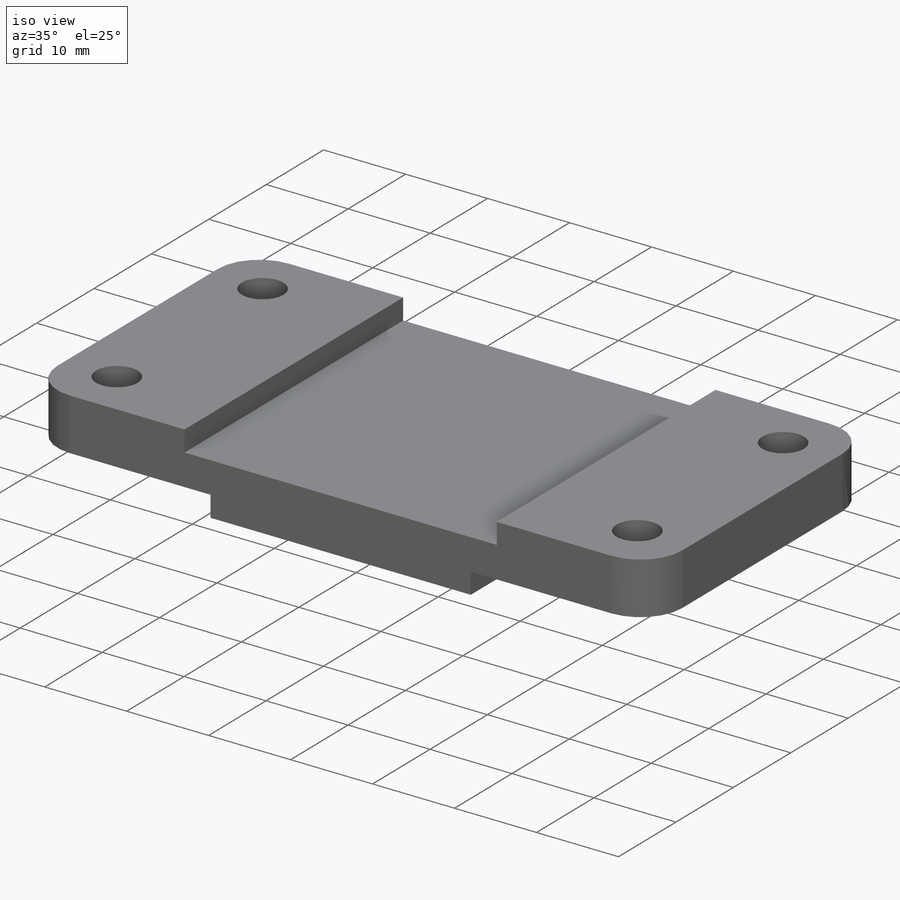
[diagram: iso view]
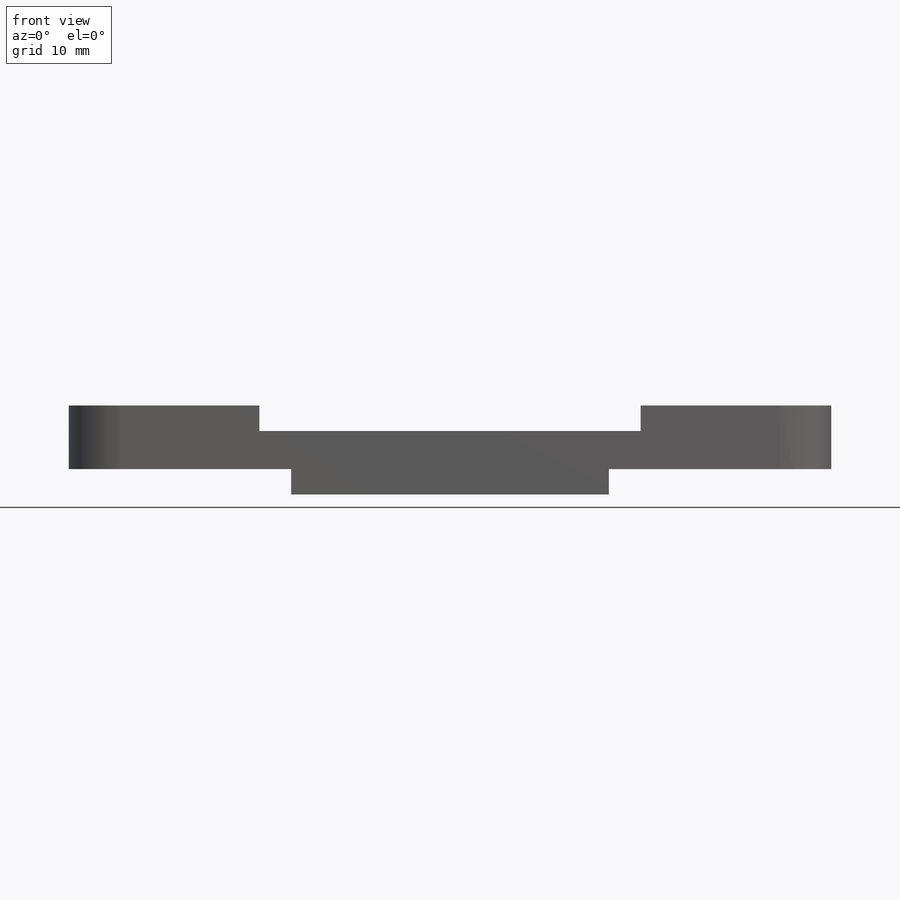
[diagram: front view]
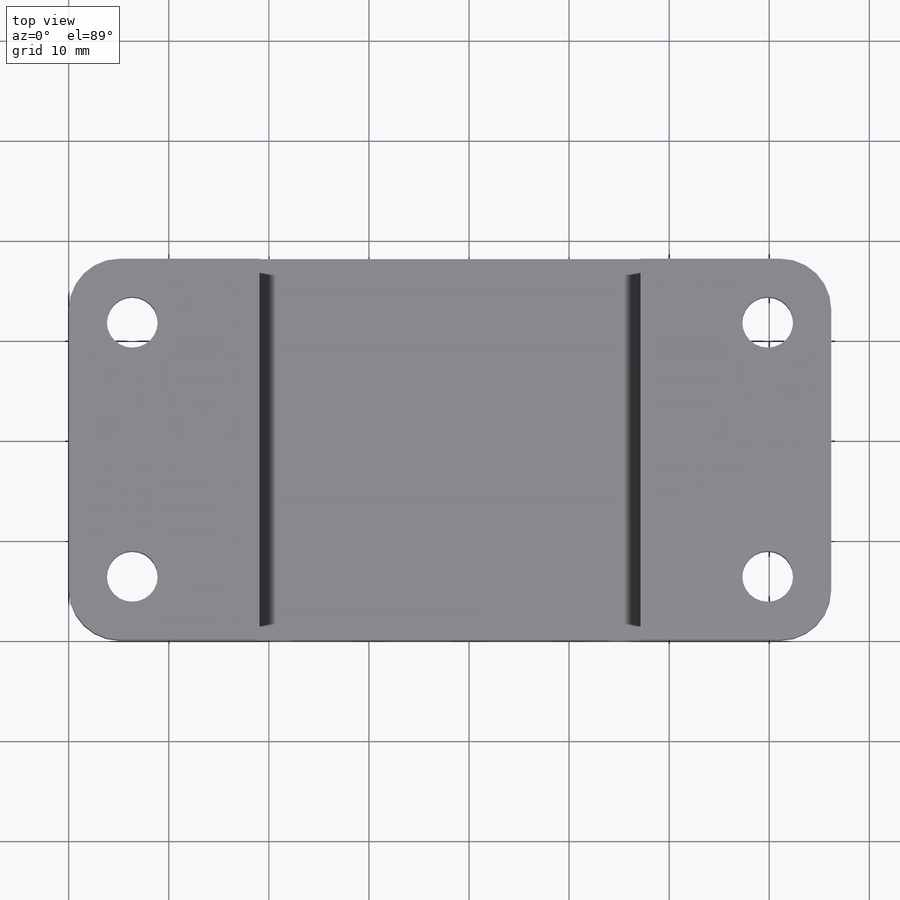
[diagram: top view]
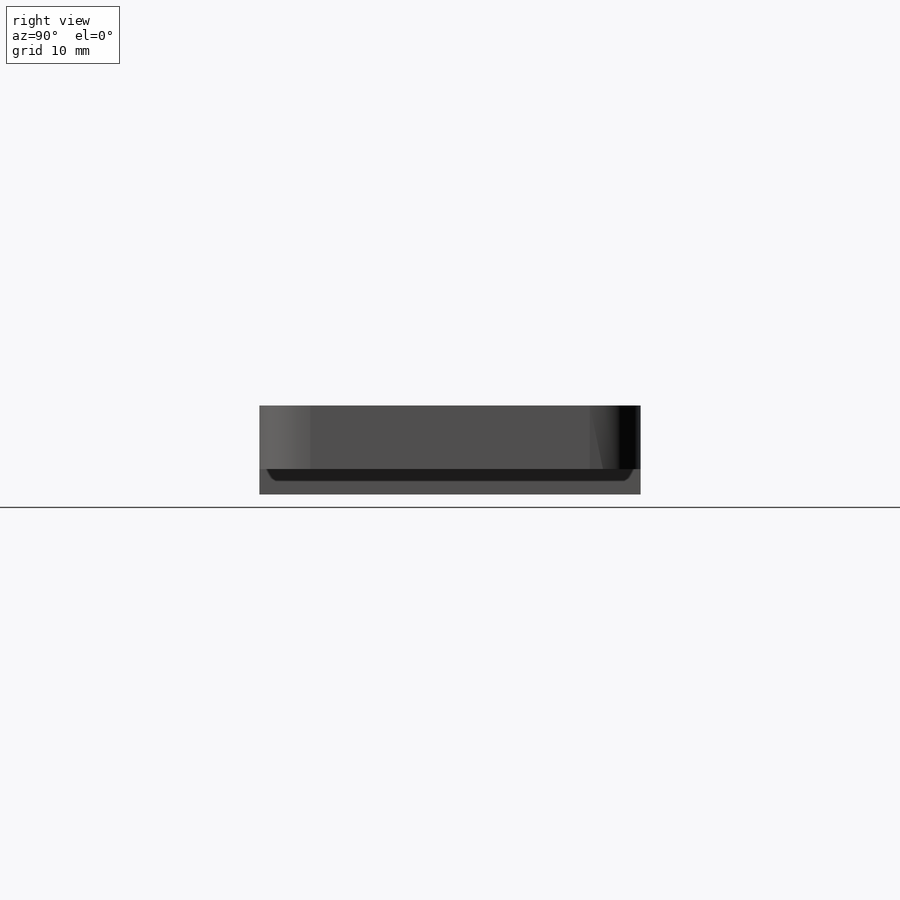
[diagram: right view]
SOLIDWORKS PART (.sldprt)
format: sldprt  version: not decoded by parser v0  size: 204,800 bytes
history: native  units: mm
features: sketch x4, extrude x2, cut_extrude x2, material x1, fillet x1 (+12 scaffold rows collapsed)
feature tree (22):
  scaffold x12  (default folders/planes/origin — collapsed)
  material  "Material <not specified>"
  sketch  "Sketch1"  dims[D1=76.2mm D2=38.1mm]
  extrude  "Boss-Extrude3"  Depth=6.35mm
  sketch  "Sketch3"  dims[D1=38.1mm D2=19.05mm D3=19.05mm]
  cut_extrude  "Cut-Extrude1"  Depth=2.54mm
  sketch  "Sketch4"  dims[D1=31.75mm D2=22.225mm D3=22.225mm]
  extrude  "Boss-Extrude4"  Depth=2.54mm
  sketch  "Sketch5"  dims[D1=5.08mm D4=5.08mm D7=5.08mm D10=5.08mm D2=6.35mm D3=31.75mm D5=6.35mm D6=31.75mm D8=6.35mm D9=31.75mm D11=6.35mm D12=31.75mm]
  cut_extrude  "Cut-Extrude5"  Depth=6.35mm
  fillet  "Fillet1"  Radius=5.08mm
decode coverage: 9 of 9 modeling features carry decoded parameters
note: suppression state not decoded; provenance and decode notes live in map.json
